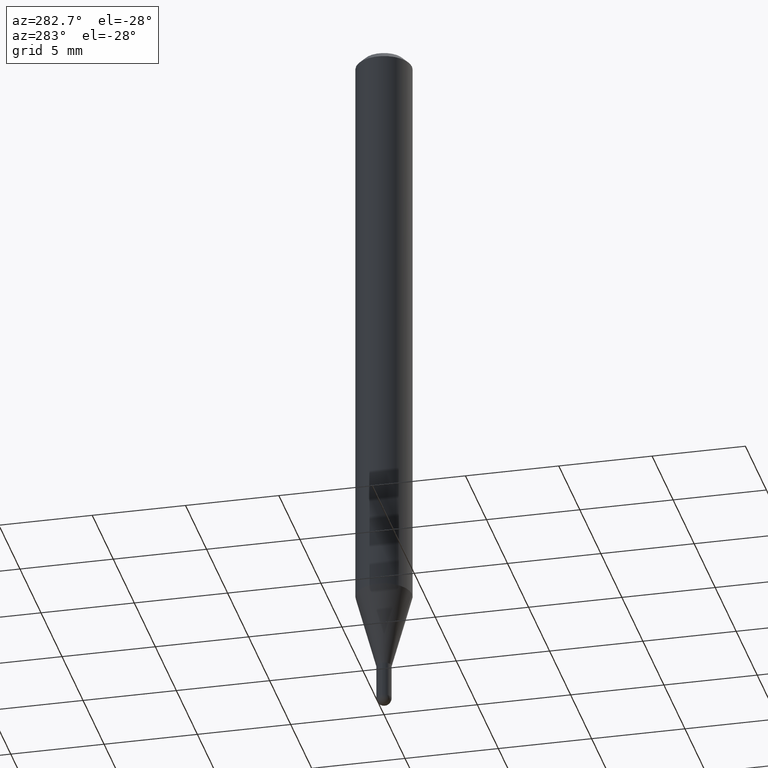
[diagram: clean part render]
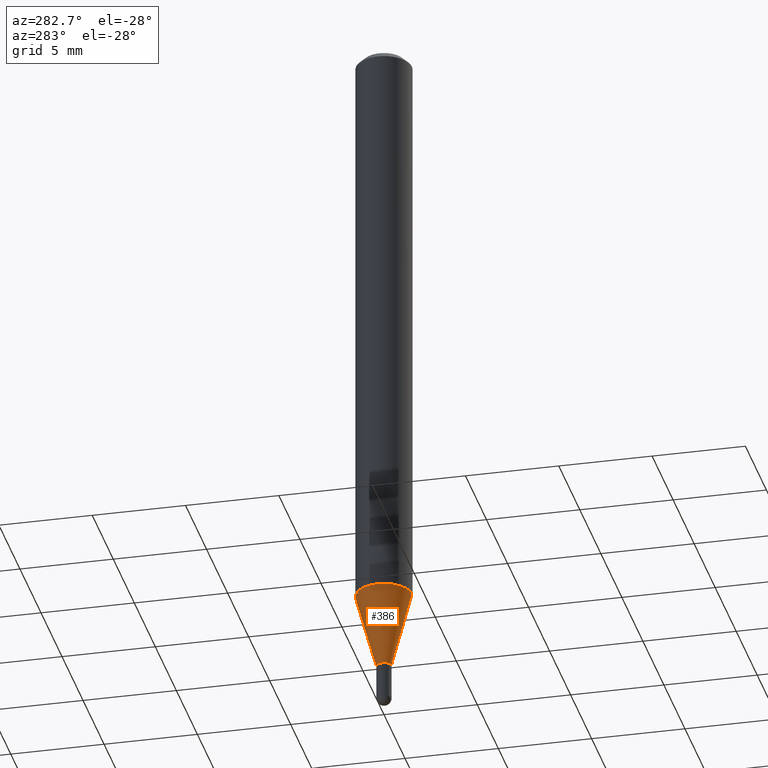
[diagram: same view with one face highlighted and labeled with its STEP entity id]
A machine part, auxiliary view. The second image highlights one B-rep face of the part: STEP entity #386.
In plain terms, the highlighted conical surface has half-angle 15 deg.
Its self-contained STEP definition (entity closure, byte-faithful):
#10 = CIRCLE ( 'NONE', #489, 0.01379999999999965109 ) ;
#70 = VERTEX_POINT ( 'NONE', #265 ) ;
#73 = LINE ( 'NONE', #77, #165 ) ;
#74 = AXIS2_PLACEMENT_3D ( 'NONE', #214, #173, #169 ) ;
#76 = EDGE_CURVE ( 'NONE', #70, #217, #10, .T. ) ;
#77 = CARTESIAN_POINT ( 'NONE',  ( 9.805489753492588379E-17, 0.01379999999999471580, -1.413100000000000023 ) ) ;
#96 = ORIENTED_EDGE ( 'NONE', *, *, #238, .F. ) ;
#113 = EDGE_CURVE ( 'NONE', #217, #371, #499, .T. ) ;
#115 = CARTESIAN_POINT ( 'NONE',  ( 3.455689067791622925E-29, -4.933816436075779894E-15, -1.413100000000000023 ) ) ;
#122 = CARTESIAN_POINT ( 'NONE',  ( -9.636488495203347041E-17, -0.01380000000000458464, -1.413100000000000023 ) ) ;
#165 = VECTOR ( 'NONE', #241, 39.37007874015748143 ) ;
#169 = DIRECTION ( 'NONE',  ( -6.982962677686265922E-15, -1.000000000000000000, 0.000000000000000000 ) ) ;
#173 = DIRECTION ( 'NONE',  ( -2.445466752382438032E-29, 3.491484280005505170E-15, 1.000000000000000000 ) ) ;
#214 = CARTESIAN_POINT ( 'NONE',  ( 3.455689067791622925E-29, -4.933816436075779894E-15, -1.413100000000000023 ) ) ;
#217 = VERTEX_POINT ( 'NONE', #122 ) ;
#221 = ORIENTED_EDGE ( 'NONE', *, *, #113, .T. ) ;
#237 = ORIENTED_EDGE ( 'NONE', *, *, #76, .T. ) ;
#238 = EDGE_CURVE ( 'NONE', #70, #277, #73, .T. ) ;
#241 = DIRECTION ( 'NONE',  ( 1.839019923739653563E-15, 0.2588190451025324523, 0.9659258262890650926 ) ) ;
#244 = CARTESIAN_POINT ( 'NONE',  ( 4.195754854663695683E-16, 0.05904999999999565458, -1.244224700957513141 ) ) ;
#265 = CARTESIAN_POINT ( 'NONE',  ( 2.588151915006478924E-16, 0.01379999999999471580, -1.413100000000000023 ) ) ;
#270 = EDGE_CURVE ( 'NONE', #277, #371, #373, .T. ) ;
#273 = EDGE_LOOP ( 'NONE', ( #96, #237, #221, #422 ) ) ;
#276 = CARTESIAN_POINT ( 'NONE',  ( 3.042710138684578593E-29, -4.344190984187706685E-15, -1.244224700957512697 ) ) ;
#277 = VERTEX_POINT ( 'NONE', #244 ) ;
#308 = DIRECTION ( 'NONE',  ( -2.445466752382438032E-29, 3.491484280005505170E-15, 1.000000000000000000 ) ) ;
#312 = CARTESIAN_POINT ( 'NONE',  ( -4.123439461173437109E-16, -0.05905000000000436289, -1.244224700957512475 ) ) ;
#322 = DIRECTION ( 'NONE',  ( -6.982962677686265922E-15, -1.000000000000000000, 4.626330217890369336E-15 ) ) ;
#347 = DIRECTION ( 'NONE',  ( -1.807323732225382599E-15, -0.2588190451025256800, 0.9659258262890669799 ) ) ;
#351 = VECTOR ( 'NONE', #347, 39.37007874015748143 ) ;
#365 = DIRECTION ( 'NONE',  ( -2.445466752382438032E-29, 3.491484280005505170E-15, 1.000000000000000000 ) ) ;
#371 = VERTEX_POINT ( 'NONE', #312 ) ;
#373 = CIRCLE ( 'NONE', #394, 0.05904999999999999832 ) ;
#386 = ADVANCED_FACE ( 'NONE', ( #426 ), #411, .T. ) ;
#394 = AXIS2_PLACEMENT_3D ( 'NONE', #276, #365, #322 ) ;
#411 = CONICAL_SURFACE ( 'NONE', #74, 0.01379999999999965109, 0.2617993877991580121 ) ;
#422 = ORIENTED_EDGE ( 'NONE', *, *, #270, .F. ) ;
#426 = FACE_OUTER_BOUND ( 'NONE', #273, .T. ) ;
#455 = CARTESIAN_POINT ( 'NONE',  ( -9.636488495203347041E-17, -0.01380000000000458464, -1.413100000000000023 ) ) ;
#489 = AXIS2_PLACEMENT_3D ( 'NONE', #115, #308, #500 ) ;
#499 = LINE ( 'NONE', #455, #351 ) ;
#500 = DIRECTION ( 'NONE',  ( -6.982962677686265922E-15, -1.000000000000000000, 0.000000000000000000 ) ) ;